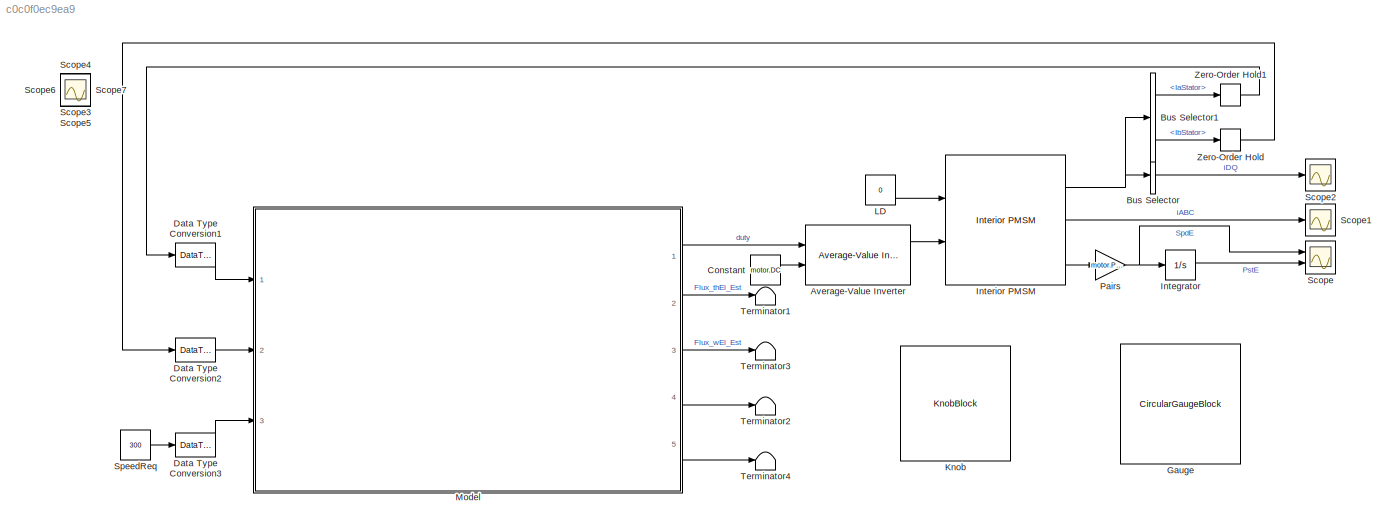
MODEL slx_c0c0f0ec9ea9
KIND model
CONFIG AbsTol = auto
CONFIG EnableMultiTasking = off
CONFIG FixedStep = Ts_PIL
CONFIG MaxStep = auto
CONFIG MinStep = auto
CONFIG RelTol = 1e-3
CONFIG SampleTimeConstraint = Unconstrained
CONFIG SolverName = FixedStepAuto
CONFIG StartTime = 0.0
CONFIG StopTime = 4
BLOCK [Reference] Average-Value Inverter  REF=mcbplantlib/Average-Value Inverter
  Ports = [2, 1]
  SourceBlock = mcbplantlib/Average-Value Inverter
  SourceProductBaseCode = MT
  SourceType = Average-Value Inverter
BLOCK [BusSelector] Bus Selector
  OutputAsBus = on
  OutputSignals = IdSync,IqSync
  Ports = [1, 1]
BLOCK [BusSelector] Bus Selector1
  OutputSignals = IaStator,IbStator
  Ports = [1, 2]
BLOCK [Constant] Constant
  Value = motor.DC
BLOCK [DataTypeConversion] Data Type Conversion1
  OutDataTypeStr = single
  RndMeth = Floor
  SaturateOnIntegerOverflow = off
BLOCK [DataTypeConversion] Data Type Conversion2
  OutDataTypeStr = single
  RndMeth = Floor
  SaturateOnIntegerOverflow = off
BLOCK [DataTypeConversion] Data Type Conversion3
  OutDataTypeStr = single
  RndMeth = Floor
  SaturateOnIntegerOverflow = off
BLOCK [CircularGaugeBlock] Gauge
  ScaleMax = 6.28
  TickInterval = 1
BLOCK [Integrator] Integrator
  Ports = [1, 1]
  WrapState = on
  WrappedStateLowerValue = 0
  WrappedStateUpperValue = 2*pi
BLOCK [Reference] Interior PMSM  REF=autolibpmsminterior/Interior PMSM
  Ports = [2, 3]
  SourceBlock = autolibpmsminterior/Interior PMSM
  SourceProductBaseCode = PW,MT,UV,VE,VP
  SourceType = Interior PMSM
BLOCK [KnobBlock] Knob
  ScaleMax = 400
  ScaleMin = 100
BLOCK [Constant] LD
  Value = 0
BLOCK [ModelReference] Model
  ModelNameDialog = FOC_PIL_Algth_model.slx
  ModelReferenceVersion = 1.592
  Ports = [3, 5]
BLOCK [Gain] Pairs
  Gain = motor.Prs
BLOCK [Scope] Scope
  Floating = off
  NumInputPorts = 2
  Ports = [2]
  ScopeSpecificationString = Simulink.scopes.TimeScopeBlockCfg('CurrentConfiguration', extmgr.ConfigurationSet(extmgr.Configuration('Core','General UI',true),extmgr.Configuration('Core','Source UI',true),extmgr.Configuration('Sources','WiredSimulink',true,'DataLoggingVariableName','ScopeData1'),extmgr.Configuration('Visuals','Time Domain',true,'SerializedDisplays',{struct('MinYLimReal','-5.65428','MaxYLimReal','50.8885','YLab...<+2048ch>
BLOCK [Scope] Scope1
  Floating = off
  NumInputPorts = 1
  Ports = [1]
  ScopeSpecificationString = Simulink.scopes.TimeScopeBlockCfg('CurrentConfiguration', extmgr.ConfigurationSet(extmgr.Configuration('Core','General UI',true),extmgr.Configuration('Core','Source UI',true),extmgr.Configuration('Sources','WiredSimulink',true,'DataLoggingVariableName','ScopeData2'),extmgr.Configuration('Visuals','Time Domain',true,'SerializedDisplays',{struct('MinYLimReal','-8.44044','MaxYLimReal','8.43823','YLab...<+1454ch>
BLOCK [Scope] Scope2
  Floating = off
  NumInputPorts = 1
  Ports = [1]
  ScopeSpecificationString = Simulink.scopes.TimeScopeBlockCfg('CurrentConfiguration', extmgr.ConfigurationSet(extmgr.Configuration('Core','General UI',true),extmgr.Configuration('Core','Source UI',true),extmgr.Configuration('Sources','WiredSimulink',true),extmgr.Configuration('Visuals','Time Domain',true,'SerializedDisplays',{struct('MinYLimReal','-2.52848','MaxYLimReal','2.54252','YLabelReal','','MinYLimMag','0.00000','MaxY...<+1403ch>
BLOCK [Scope] Scope3
  Floating = off
  IOType = viewer
  NumInputPorts = 1
  Ports = []
  ScopeSpecificationString = Simulink.scopes.TimeScopeBlockCfg('CurrentConfiguration', extmgr.ConfigurationSet(extmgr.Configuration('Core','General UI',true),extmgr.Configuration('Core','Source UI',true),extmgr.Configuration('Sources','WiredSimulink',true,'DataLoggingVariableName','ScopeData1'),extmgr.Configuration('Visuals','Time Domain',true,'SerializedDisplays',{struct('MinYLimReal','-0.7854','MaxYLimReal','7.06858','YLabe...<+1467ch>
BLOCK [Scope] Scope4
  Floating = off
  IOType = viewer
  NumInputPorts = 1
  Ports = []
  ScopeSpecificationString = Simulink.scopes.TimeScopeBlockCfg('CurrentConfiguration', extmgr.ConfigurationSet(extmgr.Configuration('Core','General UI',true),extmgr.Configuration('Core','Source UI',true),extmgr.Configuration('Sources','WiredSimulink',true,'DataLoggingVariableName','ScopeData2'),extmgr.Configuration('Visuals','Time Domain',true,'SerializedDisplays',{struct('MinYLimReal','-116.32016','MaxYLimReal','390.10177','...<+1427ch>
BLOCK [Scope] Scope5
  Floating = off
  IOType = viewer
  NumInputPorts = 1
  Ports = []
  ScopeSpecificationString = Simulink.scopes.TimeScopeBlockCfg('CurrentConfiguration', extmgr.ConfigurationSet(extmgr.Configuration('Core','General UI',true),extmgr.Configuration('Core','Source UI',true),extmgr.Configuration('Sources','WiredSimulink',true,'DataLoggingVariableName','ScopeData3'),extmgr.Configuration('Visuals','Time Domain',true,'SerializedDisplays',{struct('MinYLimReal','-12.93382','MaxYLimReal','12.99983','YL...<+1529ch>
BLOCK [Scope] Scope6
  Floating = off
  IOType = viewer
  NumInputPorts = 1
  Ports = []
  ScopeSpecificationString = Simulink.scopes.TimeScopeBlockCfg('CurrentConfiguration', extmgr.ConfigurationSet(extmgr.Configuration('Core','General UI',true),extmgr.Configuration('Core','Source UI',true),extmgr.Configuration('Sources','WiredSimulink',true,'DataLoggingVariableName','ScopeData4'),extmgr.Configuration('Visuals','Time Domain',true,'SerializedDisplays',{struct('MinYLimReal','530.00000','MaxYLimReal','840.00000','Y...<+1451ch>
BLOCK [Scope] Scope7
  Floating = off
  IOType = viewer
  NumInputPorts = 1
  Ports = []
  ScopeSpecificationString = Simulink.scopes.TimeScopeBlockCfg('CurrentConfiguration', extmgr.ConfigurationSet(extmgr.Configuration('Core','General UI',true),extmgr.Configuration('Core','Source UI',true),extmgr.Configuration('Sources','WiredSimulink',true,'DataLoggingVariableName','ScopeData1'),extmgr.Configuration('Visuals','Time Domain',true,'SerializedDisplays',{struct('MinYLimReal','-0.21148','MaxYLimReal','1.21148','YLab...<+1472ch>
BLOCK [Constant] SpeedReq
  Value = 300
BLOCK [Terminator] Terminator1
BLOCK [Terminator] Terminator2
BLOCK [Terminator] Terminator3
BLOCK [Terminator] Terminator4
BLOCK [ZeroOrderHold] Zero-Order Hold
  SampleTime = Tctr
BLOCK [ZeroOrderHold] Zero-Order Hold1
  SampleTime = Tctr
LINE Average-Value Inverter:1 -> Interior PMSM:2
LINE Bus Selector1:1 -> Zero-Order Hold1:1
LINE Bus Selector1:2 -> Zero-Order Hold:1
LINE Bus Selector:1 -> Scope2:1
LINE Constant:1 -> Average-Value Inverter:2
LINE Data Type Conversion1:1 -> Model:1
LINE Data Type Conversion2:1 -> Model:2
LINE Data Type Conversion3:1 -> Model:3
LINE Integrator:1 -> Scope:2
NET Interior PMSM:1 -> Bus Selector1:1, Bus Selector:1
LINE Interior PMSM:2 -> Scope1:1
LINE Interior PMSM:3 -> Pairs:1
LINE LD:1 -> Interior PMSM:1
LINE Model:1 -> Average-Value Inverter:1
LINE Model:2 -> Terminator1:1
LINE Model:3 -> Terminator3:1
LINE Model:4 -> Terminator2:1
LINE Model:5 -> Terminator4:1
NET Pairs:1 -> Integrator:1, Scope:1
LINE SpeedReq:1 -> Data Type Conversion3:1
LINE Zero-Order Hold1:1 -> Data Type Conversion1:1
LINE Zero-Order Hold:1 -> Data Type Conversion2:1
note: NET lines group one-source signal fan-out (src -> all destinations, sorted); 1:1 wires keep LINE
